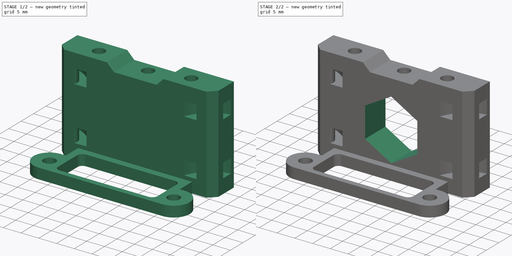
[diagram: build sequence overview — one tinted view per stage of 2, left to right]
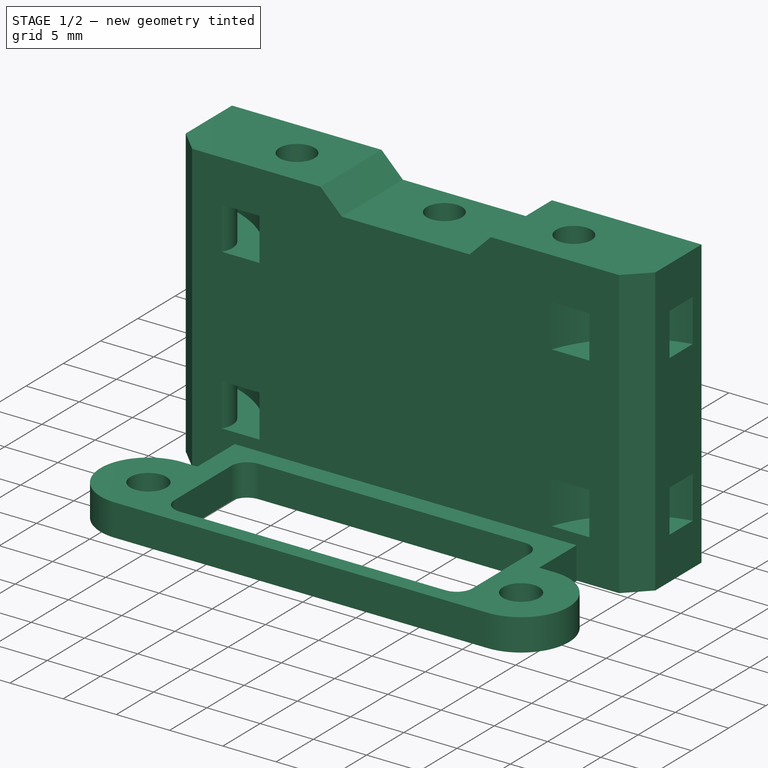
[diagram: stage 1 of 2 — iso view after this stage's code; geometry added in this stage tinted green]
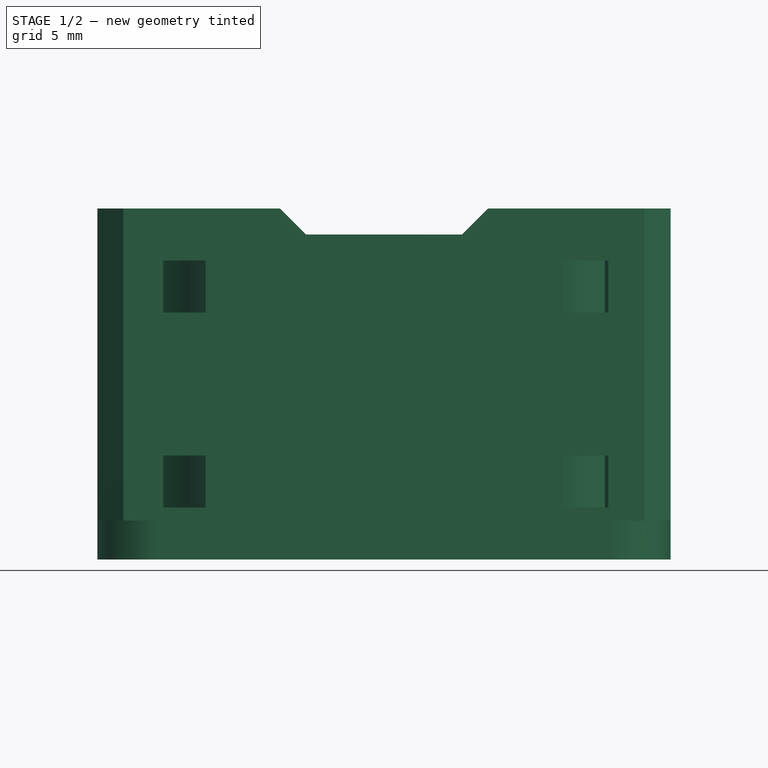
[diagram: stage 1 of 2 — front view after this stage's code; geometry added in this stage tinted green]
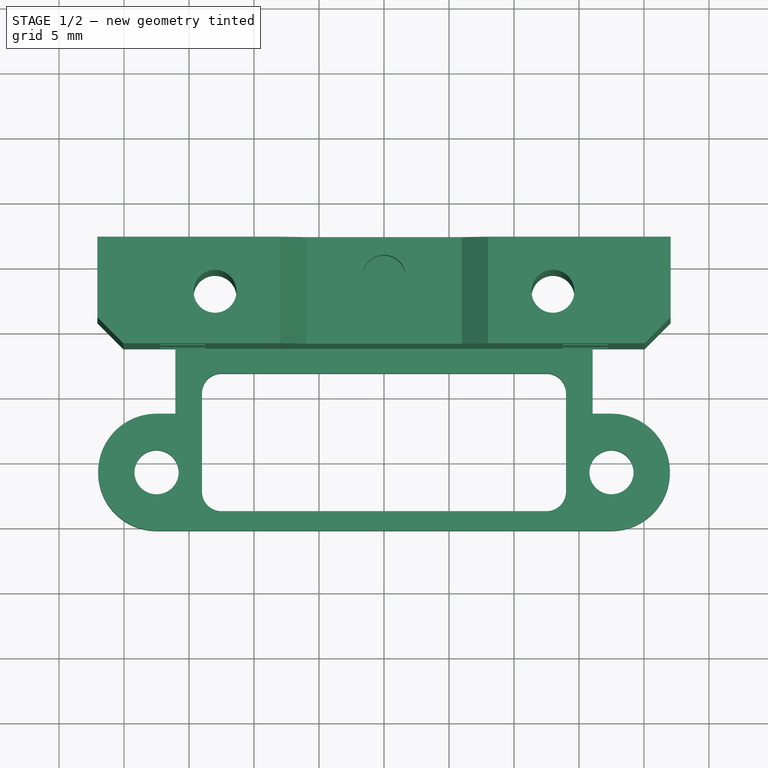
[diagram: stage 1 of 2 — top view after this stage's code; geometry added in this stage tinted green]
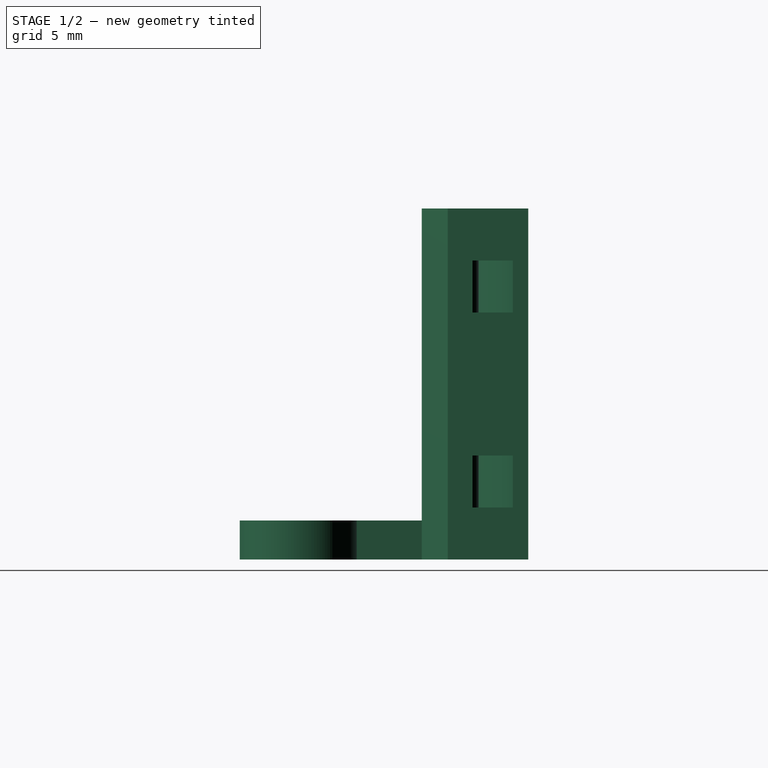
[diagram: stage 1 of 2 — right view after this stage's code; geometry added in this stage tinted green]
FCSTD DOCUMENT  (FreeCAD 0.19R24291 (Git))
Label: bottom-plate-cutout
License: Other
LicenseURL: GPL3
objects: Part::Feature×1, PartDesign::FeatureBase×1, Sketcher::SketchObject×1, PartDesign::Pocket×1, PartDesign::Body×1
note: 6 computed .brp shape members not serialized (recipe doc carries the construction recipe); baked Part::Feature solids carry a one-line shape summary decoded from their .brp

FEATURE [Part::Feature] Part__Feature006  label="extruderbottom-plate"
  Placement = pos=(0,17.6378,-29.79) rot=(1,0,0;1.5708rad)
  shape: bbox 44.1 x 27 x 22.2 mm, 66 faces (baked)
FEATURE [PartDesign::FeatureBase] BaseFeature
  BaseFeature = -> Part__Feature006
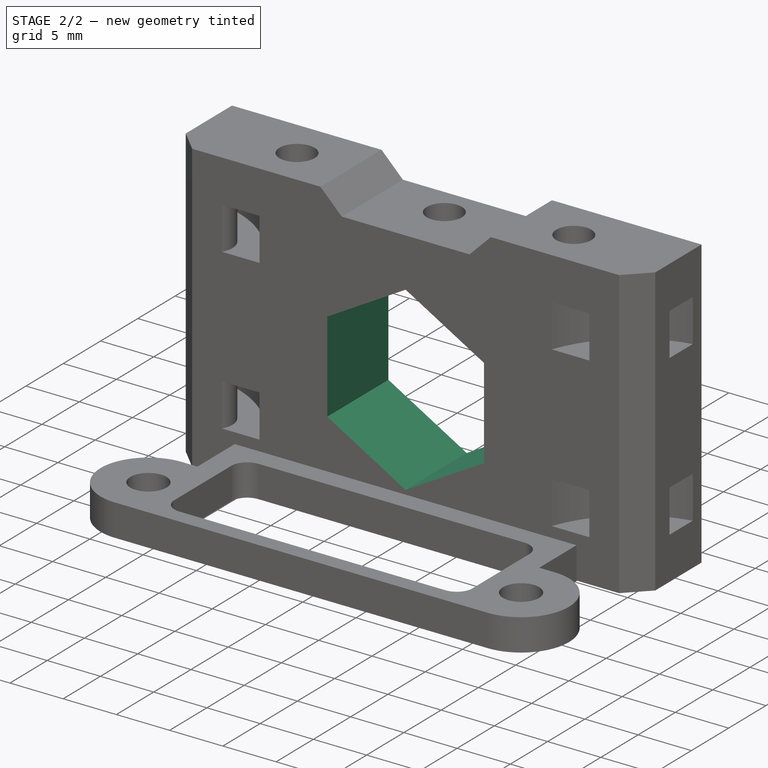
[diagram: stage 2 of 2 — iso view after this stage's code; geometry added in this stage tinted green]
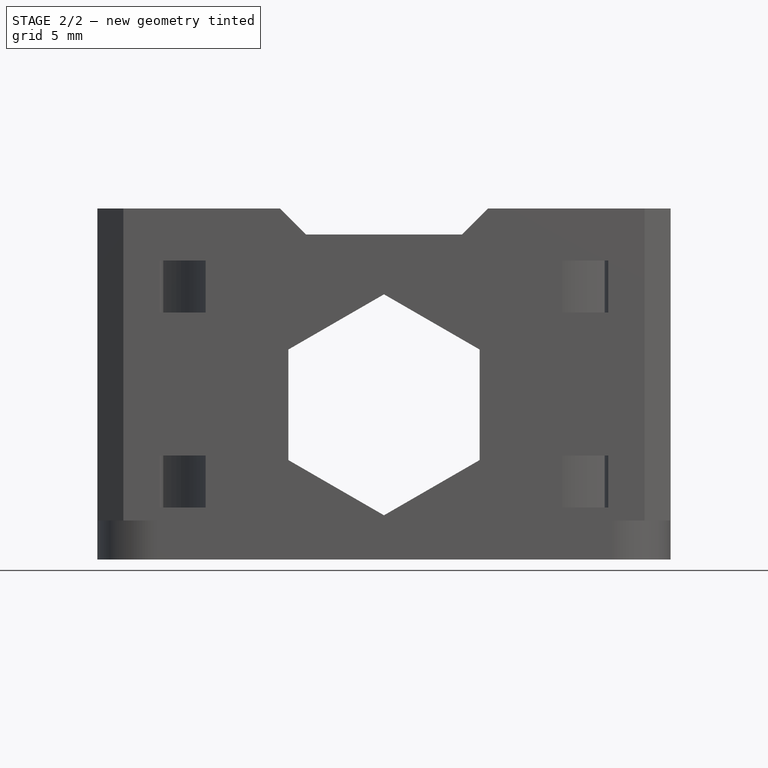
[diagram: stage 2 of 2 — front view after this stage's code; geometry added in this stage tinted green]
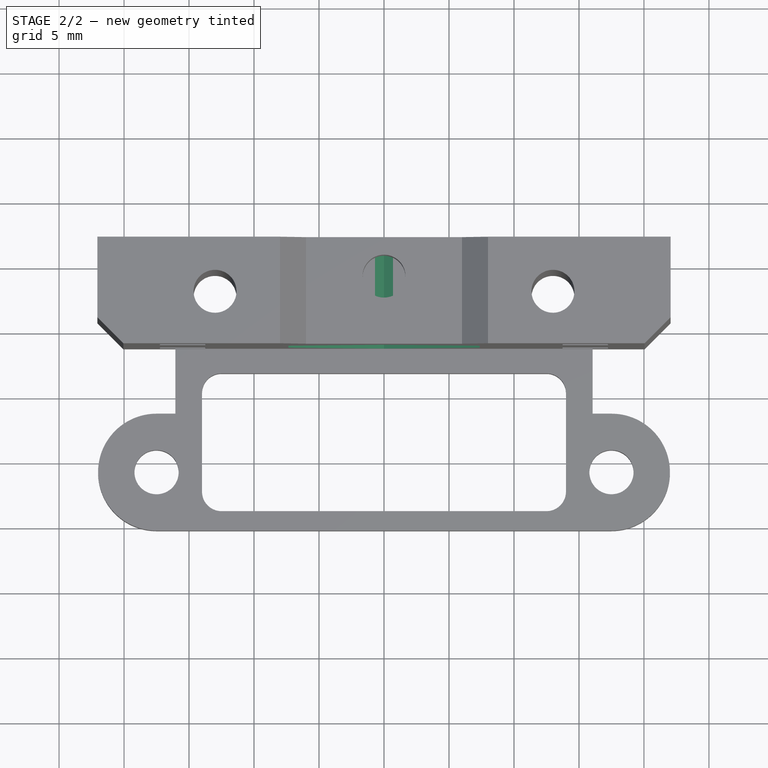
[diagram: stage 2 of 2 — top view after this stage's code; geometry added in this stage tinted green]
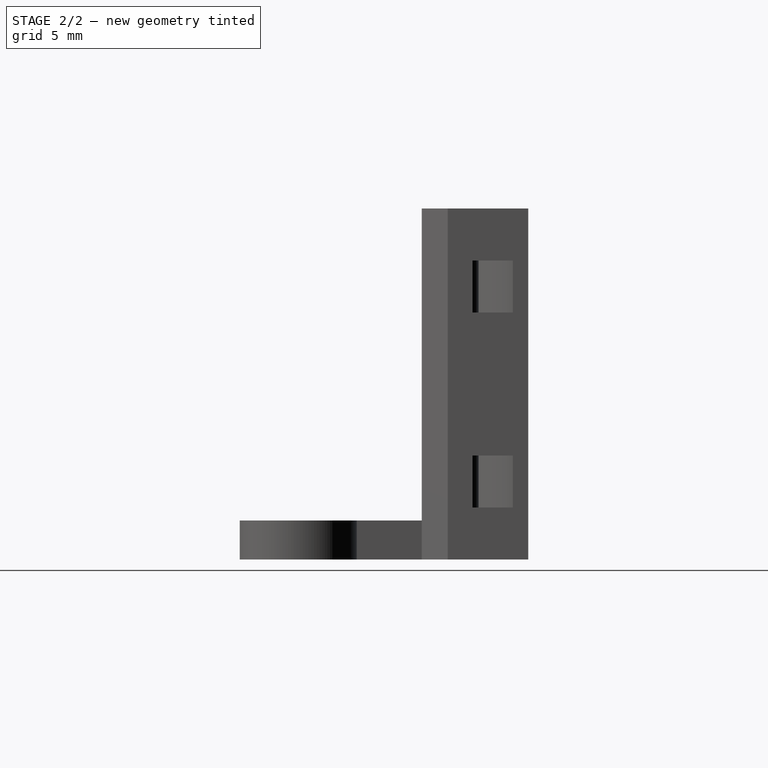
[diagram: stage 2 of 2 — right view after this stage's code; geometry added in this stage tinted green]
FEATURE [Sketcher::SketchObject] Sketch
  FullyConstrained = true
  MapMode = 5
  Placement = pos=(0,27,1.6e-15) rot=(0,0.707107,0.707107;3.14159rad)
  Support = -> [BaseFeature]
  sketch-geometry (7):
    g0: LineSegment StartX=1.1013e-12 StartY=24.5 StartZ=0 EndX=-7.36122 EndY=20.25 EndZ=0
    g1: LineSegment StartX=-7.36122 StartY=20.25 StartZ=0 EndX=-7.36122 EndY=11.75 EndZ=0
    g2: LineSegment StartX=-7.36122 StartY=11.75 StartZ=0 EndX=1.1013e-12 EndY=7.5 EndZ=0
    g3: LineSegment StartX=1.1013e-12 StartY=7.5 StartZ=0 EndX=7.36122 EndY=11.75 EndZ=0
    g4: LineSegment StartX=7.36122 StartY=11.75 StartZ=0 EndX=7.36122 EndY=20.25 EndZ=0
    g5: LineSegment StartX=7.36122 StartY=20.25 StartZ=0 EndX=1.1013e-12 EndY=24.5 EndZ=0
    g6: Circle CenterX=0 CenterY=16 CenterZ=0 NormalX=0 NormalY=0 NormalZ=1 AngleXU=0 Radius=8.5
  constraints (17):
    c: Coincident(g0,g1)
    c: Coincident(g1,g2)
    c: Coincident(g2,g3)
    c: Coincident(g3,g4)
    c: Coincident(g4,g5)
    c: Coincident(g5,g0)
    c: Equal(g0, g1-g5) x5
    c: PointOnObject(g0,g6)
    c: PointOnObject(g1,g6)
    c: PointOnObject(g2,g6)
    c: PointOnObject(g3,g6)
    c: PointOnObject(g4,g6)
    c: PointOnObject(g5,g6)
    c: PointOnObject(g6,g-2)
    c: Vertical(g0,g2)
    c: Radius(g6) = 8.5
    c: DistanceY(g-1,g6) = 16
FEATURE [PartDesign::Pocket] Pocket
  BaseFeature = -> BaseFeature
  Length = 5
  Length2 = 100
  Profile = -> Sketch
  Type = 1
FEATURE [PartDesign::Body] Body
  BaseFeature = -> Part__Feature006
  Group = -> [BaseFeature,Sketch,Pocket]
  Origin = -> Origin
  Tip = -> Pocket
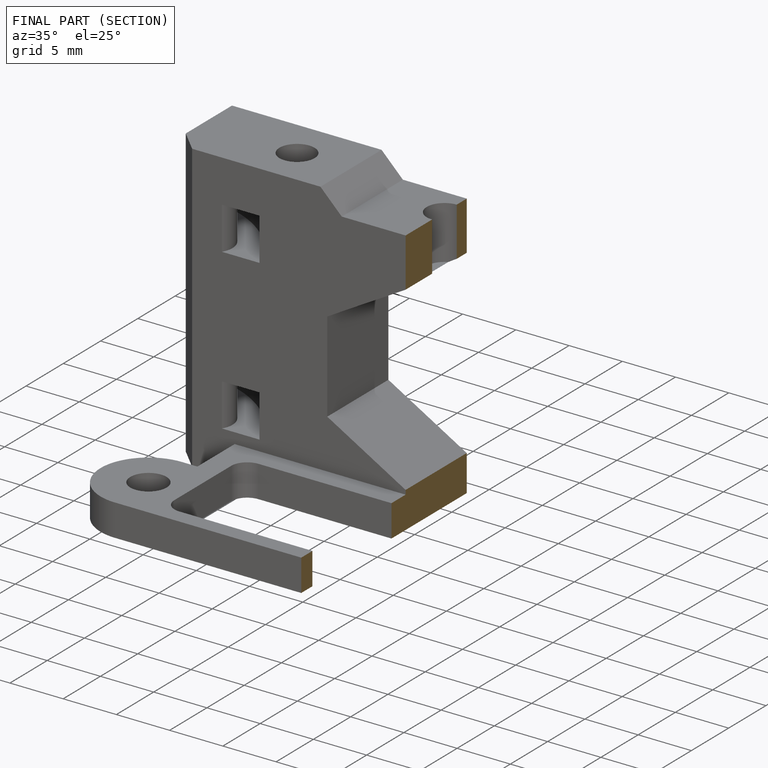
[diagram: finished part — half-section view (interior)]
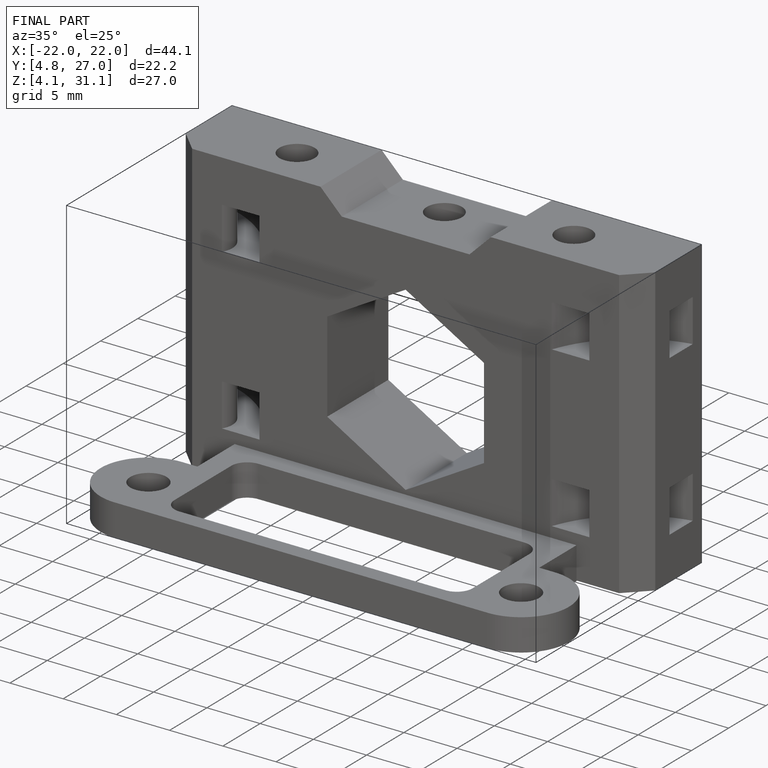
[diagram: finished part — iso view with bounding-box wireframe]
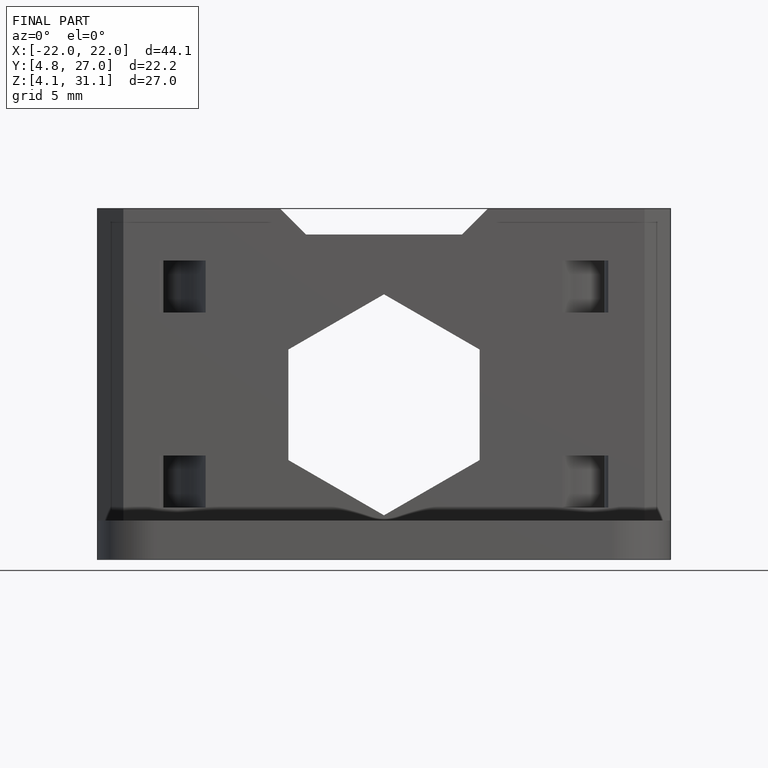
[diagram: finished part — front view with bounding-box wireframe]
